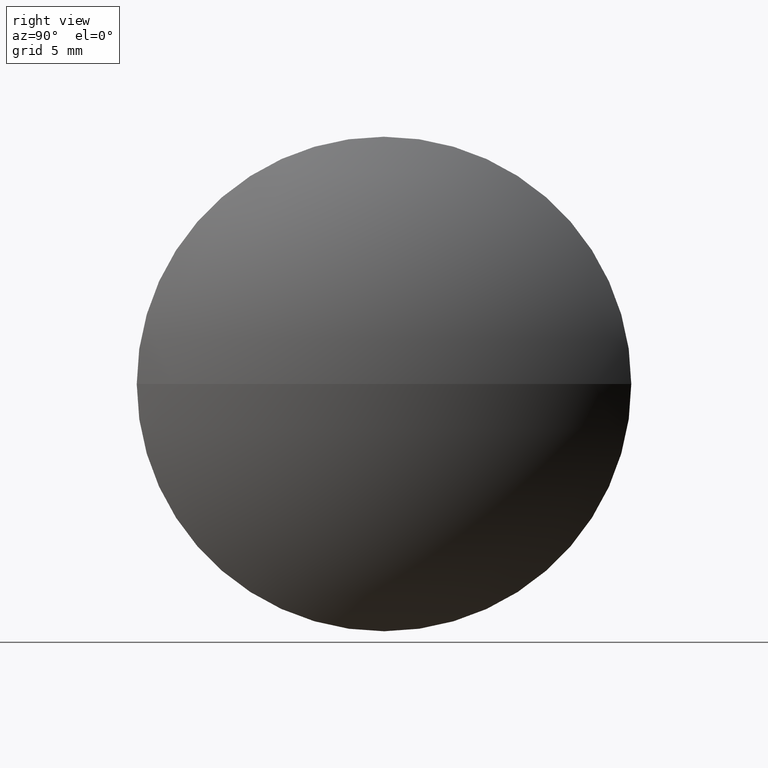
[diagram: clean part render]
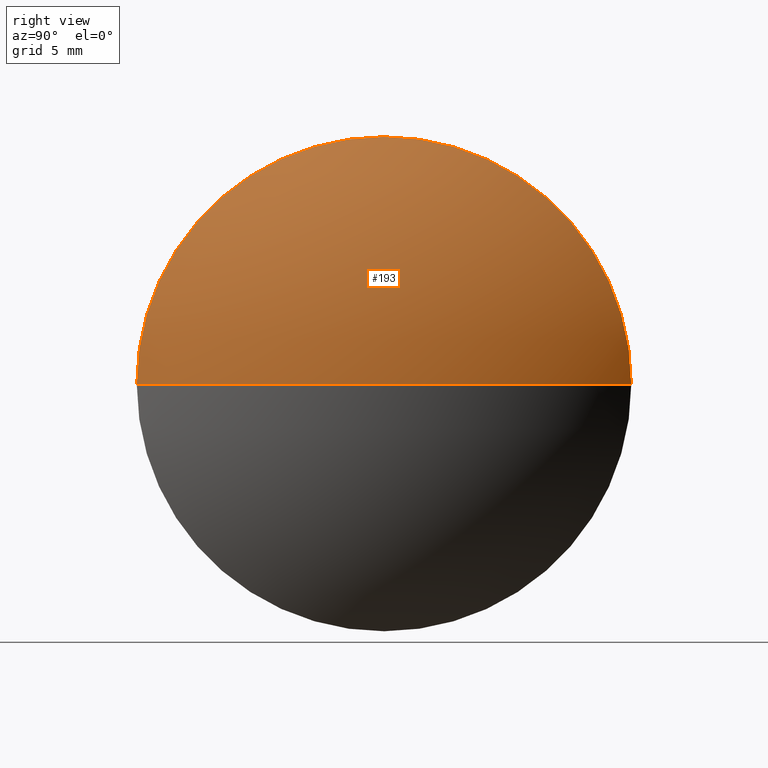
[diagram: same view with one face highlighted and labeled with its STEP entity id]
A machine part, right view. The second image highlights one B-rep face of the part: STEP entity #193.
In plain terms, the highlighted spherical surface has radius 20.1701 mm.
Its self-contained STEP definition (entity closure, byte-faithful):
#3 = DIRECTION ( 'NONE',  ( -0.0000000000000000000, 0.0000000000000000000, 1.000000000000000000 ) ) ;
#7 = DIRECTION ( 'NONE',  ( -1.000000000000000000, -0.0000000000000000000, -0.0000000000000000000 ) ) ;
#9 = CARTESIAN_POINT ( 'NONE',  ( 87.45786520323396500, 48.61611302318478100, 0.0000000000000000000 ) ) ;
#10 = DIRECTION ( 'NONE',  ( 0.0000000000000000000, 1.000000000000000000, 0.0000000000000000000 ) ) ;
#24 = EDGE_CURVE ( 'NONE', #314, #225, #60, .T. ) ;
#25 = DIRECTION ( 'NONE',  ( 1.000000000000000000, 0.0000000000000000000, 0.0000000000000000000 ) ) ;
#32 = CARTESIAN_POINT ( 'NONE',  ( 91.95816463180538800, 48.61611302318477400, 0.0000000000000000000 ) ) ;
#44 = AXIS2_PLACEMENT_3D ( 'NONE', #183, #3, #25 ) ;
#47 = CIRCLE ( 'NONE', #201, 12.69999999999999600 ) ;
#55 = AXIS2_PLACEMENT_3D ( 'NONE', #86, #7, #140 ) ;
#60 = CIRCLE ( 'NONE', #255, 20.17006843969371100 ) ;
#68 = CARTESIAN_POINT ( 'NONE',  ( 71.78809619211168100, 48.61611302318477400, 0.0000000000000000000 ) ) ;
#74 = EDGE_CURVE ( 'NONE', #314, #208, #316, .T. ) ;
#86 = CARTESIAN_POINT ( 'NONE',  ( 87.45786520323396500, 48.61611302318478100, 0.0000000000000000000 ) ) ;
#119 = CARTESIAN_POINT ( 'NONE',  ( 87.45786520323396500, 61.31611302318477600, 0.0000000000000000000 ) ) ;
#122 = EDGE_CURVE ( 'NONE', #225, #312, #47, .T. ) ;
#130 = CIRCLE ( 'NONE', #55, 12.69999999999999600 ) ;
#131 = ORIENTED_EDGE ( 'NONE', *, *, #313, .F. ) ;
#136 = DIRECTION ( 'NONE',  ( 0.0000000000000000000, 0.0000000000000000000, 1.000000000000000000 ) ) ;
#139 = CARTESIAN_POINT ( 'NONE',  ( 87.45786520323396500, 35.91611302318477800, -1.555301434917138000E-015 ) ) ;
#140 = DIRECTION ( 'NONE',  ( 0.0000000000000000000, 0.0000000000000000000, 1.000000000000000000 ) ) ;
#165 = ORIENTED_EDGE ( 'NONE', *, *, #122, .F. ) ;
#166 = ORIENTED_EDGE ( 'NONE', *, *, #24, .F. ) ;
#171 = DIRECTION ( 'NONE',  ( -0.0000000000000000000, 0.0000000000000000000, -1.000000000000000000 ) ) ;
#183 = CARTESIAN_POINT ( 'NONE',  ( 71.78809619211168100, 48.61611302318477400, 0.0000000000000000000 ) ) ;
#193 = ADVANCED_FACE ( 'NONE', ( #289 ), #197, .T. ) ;
#197 = SPHERICAL_SURFACE ( 'NONE', #278, 20.17006843969370800 ) ;
#201 = AXIS2_PLACEMENT_3D ( 'NONE', #9, #264, #136 ) ;
#208 = VERTEX_POINT ( 'NONE', #119 ) ;
#225 = VERTEX_POINT ( 'NONE', #139 ) ;
#236 = DIRECTION ( 'NONE',  ( 0.0000000000000000000, 1.000000000000000000, 1.224646799147353000E-016 ) ) ;
#255 = AXIS2_PLACEMENT_3D ( 'NONE', #318, #344, #236 ) ;
#264 = DIRECTION ( 'NONE',  ( -1.000000000000000000, -0.0000000000000000000, -0.0000000000000000000 ) ) ;
#268 = CARTESIAN_POINT ( 'NONE',  ( 87.45786520323396500, 48.61611302318478100, 12.69999999999999600 ) ) ;
#278 = AXIS2_PLACEMENT_3D ( 'NONE', #68, #171, #10 ) ;
#289 = FACE_OUTER_BOUND ( 'NONE', #306, .T. ) ;
#306 = EDGE_LOOP ( 'NONE', ( #166, #320, #131, #165 ) ) ;
#312 = VERTEX_POINT ( 'NONE', #268 ) ;
#313 = EDGE_CURVE ( 'NONE', #312, #208, #130, .T. ) ;
#314 = VERTEX_POINT ( 'NONE', #32 ) ;
#316 = CIRCLE ( 'NONE', #44, 20.17006843969371100 ) ;
#318 = CARTESIAN_POINT ( 'NONE',  ( 71.78809619211168100, 48.61611302318477400, 0.0000000000000000000 ) ) ;
#320 = ORIENTED_EDGE ( 'NONE', *, *, #74, .T. ) ;
#344 = DIRECTION ( 'NONE',  ( 0.0000000000000000000, 1.224646799147353200E-016, -1.000000000000000000 ) ) ;